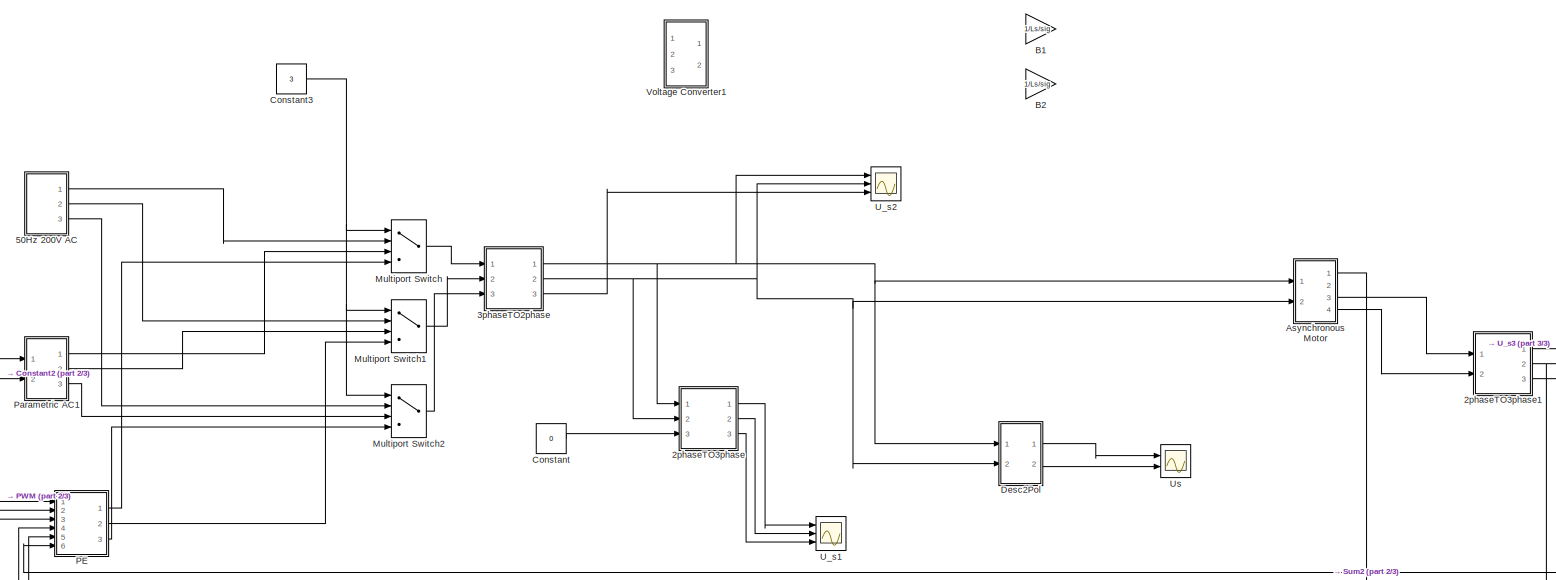
[diagram: root canvas - part 1/3, central region]
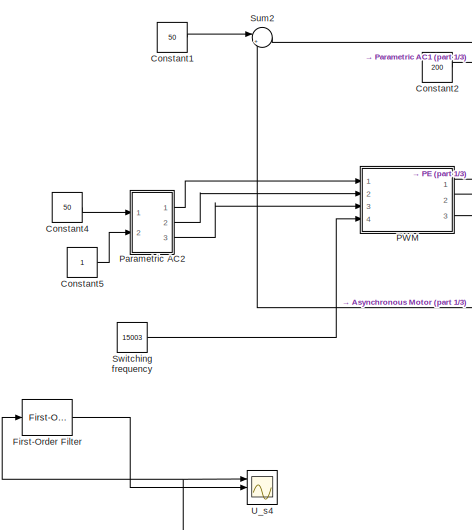
[diagram: root canvas - part 2/3, bottom left region]
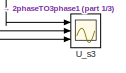
[diagram: root canvas - part 3/3, middle right region]
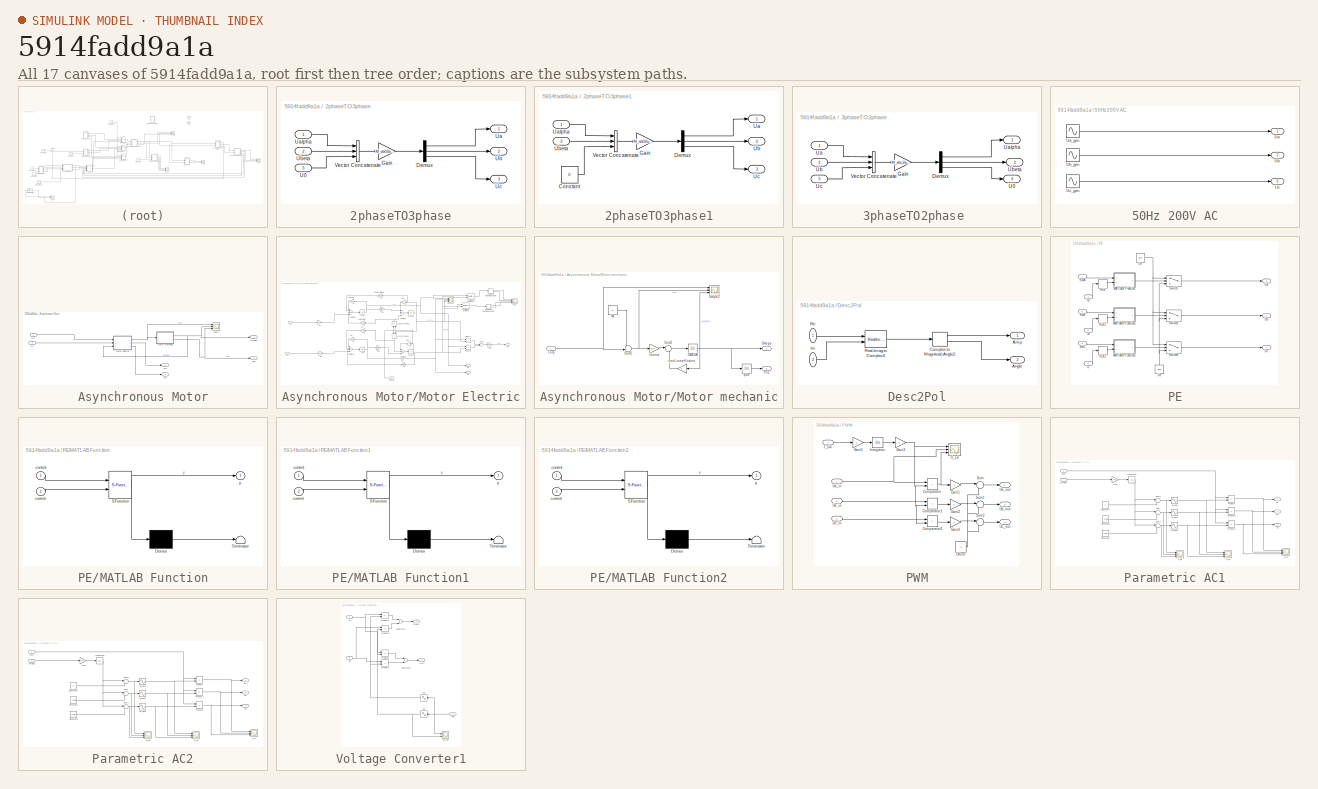
[diagram: thumbnail index - all 17 canvases of the model, root first then tree order]
MODEL slx_5914fadd9a1a
KIND model
CONFIG AbsTol = auto
CONFIG FixedStep = 0.00002
CONFIG MaxStep = auto
CONFIG MinStep = auto
CONFIG RelTol = 1e-3
CONFIG SampleTimeConstraint = Unconstrained
CONFIG Solver = FixedStepAuto
CONFIG SolverMode = Auto
CONFIG SolverName = FixedStepAuto
CONFIG StartTime = 0.0
CONFIG StopTime = 3
BLOCK [SubSystem] 2phaseTO3phase
  Ports = [3, 3]
  RequestExecContextInheritance = off
  Variant = off
BLOCK [Demux] 2phaseTO3phase/Demux
  DisplayOption = bar
  Outputs = 3
  Ports = [1, 3]
BLOCK [Gain] 2phaseTO3phase/Gain
  Gain = M_ab02abc
  Multiplication = Matrix(K*u)
  OutDataTypeStr = Inherit: Inherit via internal rule
  ParamDataTypeStr = Inherit: Inherit via internal rule
  SaturateOnIntegerOverflow = off
BLOCK [Inport] 2phaseTO3phase/U0
  IconDisplay = Port number
  Port = 3
BLOCK [Outport] 2phaseTO3phase/Ua
  IconDisplay = Port number
BLOCK [Inport] 2phaseTO3phase/Ualpha
  IconDisplay = Port number
BLOCK [Outport] 2phaseTO3phase/Ub
  IconDisplay = Port number
  Port = 2
BLOCK [Inport] 2phaseTO3phase/Ubeta
  IconDisplay = Port number
  Port = 2
BLOCK [Outport] 2phaseTO3phase/Uc
  IconDisplay = Port number
  Port = 3
BLOCK [Concatenate] 2phaseTO3phase/Vector Concatenate
  NumInputs = 3
  Ports = [3, 1]
BLOCK [SubSystem] 2phaseTO3phase1
  Ports = [2, 3]
  RequestExecContextInheritance = off
  Variant = off
BLOCK [Constant] 2phaseTO3phase1/Constant
  Value = 0
BLOCK [Demux] 2phaseTO3phase1/Demux
  DisplayOption = bar
  Outputs = 3
  Ports = [1, 3]
BLOCK [Gain] 2phaseTO3phase1/Gain
  Gain = M_ab02abc
  Multiplication = Matrix(K*u)
  OutDataTypeStr = Inherit: Inherit via internal rule
  ParamDataTypeStr = Inherit: Inherit via internal rule
  SaturateOnIntegerOverflow = off
BLOCK [Outport] 2phaseTO3phase1/Ua
  IconDisplay = Port number
BLOCK [Inport] 2phaseTO3phase1/Ualpha
  IconDisplay = Port number
BLOCK [Outport] 2phaseTO3phase1/Ub
  IconDisplay = Port number
  Port = 2
BLOCK [Inport] 2phaseTO3phase1/Ubeta
  IconDisplay = Port number
  Port = 2
BLOCK [Outport] 2phaseTO3phase1/Uc
  IconDisplay = Port number
  Port = 3
BLOCK [Concatenate] 2phaseTO3phase1/Vector Concatenate
  NumInputs = 3
  Ports = [3, 1]
BLOCK [SubSystem] 3phaseTO2phase 
  Ports = [3, 3]
  RequestExecContextInheritance = off
  Variant = off
BLOCK [Demux] 3phaseTO2phase /Demux
  DisplayOption = bar
  Outputs = 3
  Ports = [1, 3]
BLOCK [Gain] 3phaseTO2phase /Gain
  Gain = M_abc2ab0
  Multiplication = Matrix(K*u)
  OutDataTypeStr = Inherit: Inherit via internal rule
  ParamDataTypeStr = Inherit: Inherit via internal rule
  SaturateOnIntegerOverflow = off
BLOCK [Outport] 3phaseTO2phase /U0
  IconDisplay = Port number
  Port = 3
BLOCK [Inport] 3phaseTO2phase /Ua
  IconDisplay = Port number
BLOCK [Outport] 3phaseTO2phase /Ualpha
  IconDisplay = Port number
BLOCK [Inport] 3phaseTO2phase /Ub
  IconDisplay = Port number
  Port = 2
BLOCK [Outport] 3phaseTO2phase /Ubeta
  IconDisplay = Port number
  Port = 2
BLOCK [Inport] 3phaseTO2phase /Uc
  IconDisplay = Port number
  Port = 3
BLOCK [Concatenate] 3phaseTO2phase /Vector Concatenate
  NumInputs = 3
  Ports = [3, 1]
BLOCK [SubSystem] 50Hz 200V AC
  Ports = [0, 3]
  RequestExecContextInheritance = off
  Variant = off
BLOCK [Outport] 50Hz 200V AC/Ua
  IconDisplay = Port number
BLOCK [Sin] 50Hz 200V AC/Ua_gen
  Amplitude = 200
  Frequency = 314
  Ports = [0, 1]
  SampleTime = 0
BLOCK [Outport] 50Hz 200V AC/Ub
  IconDisplay = Port number
  Port = 2
BLOCK [Sin] 50Hz 200V AC/Ub_gen
  Amplitude = 200
  Frequency = 314
  Phase = -2*pi/3
  Ports = [0, 1]
  SampleTime = 0
BLOCK [Outport] 50Hz 200V AC/Uc
  IconDisplay = Port number
  Port = 3
BLOCK [Sin] 50Hz 200V AC/Uc_gen
  Amplitude = 200
  Frequency = 314
  Phase = 2*pi/3
  Ports = [0, 1]
  SampleTime = 0
BLOCK [SubSystem] Asynchronous Motor
  Ports = [2, 4]
  RequestExecContextInheritance = off
  Variant = off
BLOCK [Outport] Asynchronous Motor/Isd
  IconDisplay = Port number
  Port = 3
BLOCK [Outport] Asynchronous Motor/Isq
  IconDisplay = Port number
  Port = 4
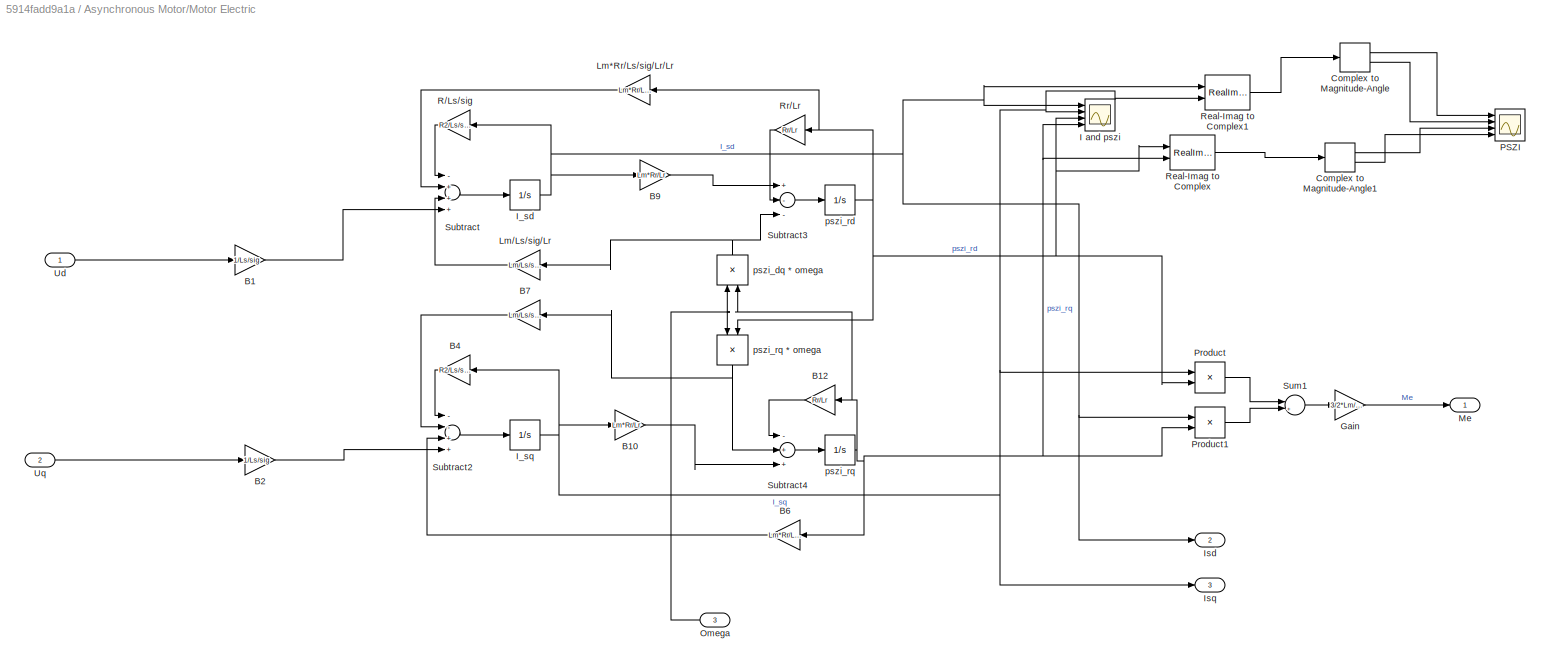
BLOCK [SubSystem] Asynchronous Motor/Motor Electric
  Ports = [3, 3]
  RequestExecContextInheritance = off
  Variant = off
BLOCK [Gain] Asynchronous Motor/Motor Electric/B1
  Gain = 1/Ls/sig
  Multiplication = Matrix(K*u)
  OutDataTypeStr = Inherit: Inherit via internal rule
  ParamDataTypeStr = Inherit: Inherit via internal rule
  SaturateOnIntegerOverflow = off
BLOCK [Gain] Asynchronous Motor/Motor Electric/B10
  Gain = Lm*Rr/Lr
  Multiplication = Matrix(K*u)
  OutDataTypeStr = Inherit: Inherit via internal rule
  ParamDataTypeStr = Inherit: Inherit via internal rule
  SaturateOnIntegerOverflow = off
BLOCK [Gain] Asynchronous Motor/Motor Electric/B12
  Gain = Rr/Lr
  Multiplication = Matrix(K*u)
  OutDataTypeStr = Inherit: Inherit via internal rule
  ParamDataTypeStr = Inherit: Inherit via internal rule
  SaturateOnIntegerOverflow = off
BLOCK [Gain] Asynchronous Motor/Motor Electric/B2
  Gain = 1/Ls/sig
  Multiplication = Matrix(K*u)
  OutDataTypeStr = Inherit: Inherit via internal rule
  ParamDataTypeStr = Inherit: Inherit via internal rule
  SaturateOnIntegerOverflow = off
BLOCK [Gain] Asynchronous Motor/Motor Electric/B4
  Gain = R2/Ls/sig
  Multiplication = Matrix(K*u)
  OutDataTypeStr = Inherit: Inherit via internal rule
  ParamDataTypeStr = Inherit: Inherit via internal rule
  SaturateOnIntegerOverflow = off
BLOCK [Gain] Asynchronous Motor/Motor Electric/B6
  Gain = Lm*Rr/Ls/sig/Lr/Lr
  Multiplication = Matrix(K*u)
  OutDataTypeStr = Inherit: Inherit via internal rule
  ParamDataTypeStr = Inherit: Inherit via internal rule
  SaturateOnIntegerOverflow = off
BLOCK [Gain] Asynchronous Motor/Motor Electric/B7
  Gain = Lm/Ls/sig/Lr
  Multiplication = Matrix(K*u)
  OutDataTypeStr = Inherit: Inherit via internal rule
  ParamDataTypeStr = Inherit: Inherit via internal rule
  SaturateOnIntegerOverflow = off
BLOCK [Gain] Asynchronous Motor/Motor Electric/B9
  Gain = Lm*Rr/Lr
  Multiplication = Matrix(K*u)
  OutDataTypeStr = Inherit: Inherit via internal rule
  ParamDataTypeStr = Inherit: Inherit via internal rule
  SaturateOnIntegerOverflow = off
BLOCK [ComplexToMagnitudeAngle] Asynchronous Motor/Motor Electric/Complex to Magnitude-Angle
  Ports = [1, 2]
BLOCK [ComplexToMagnitudeAngle] Asynchronous Motor/Motor Electric/Complex to Magnitude-Angle1
  Ports = [1, 2]
BLOCK [Gain] Asynchronous Motor/Motor Electric/Gain
  Gain = 3/2*Lm/Lr
  OutDataTypeStr = Inherit: Inherit via internal rule
  ParamDataTypeStr = Inherit: Inherit via internal rule
  SaturateOnIntegerOverflow = off
BLOCK [Scope] Asynchronous Motor/Motor Electric/I and pszi
  NumInputPorts = 4
  Ports = [4]
  ScopeSpecificationString = Simulink.scopes.TimeScopeBlockCfg('CurrentConfiguration', extmgr.ConfigurationSet(extmgr.Configuration('Core','General UI',true),extmgr.Configuration('Core','Source UI',true),extmgr.Configuration('Sources','WiredSimulink',true),extmgr.Configuration('Visuals','Time Domain',true,'SerializedDisplays',{struct('MinYLimReal','-0.35721','MaxYLimReal','0.2837','YLabelReal','','MinYLimMag','0.00000','MaxYL...<+1422ch>
BLOCK [Integrator] Asynchronous Motor/Motor Electric/I_sd
  Ports = [1, 1]
BLOCK [Integrator] Asynchronous Motor/Motor Electric/I_sq
  Ports = [1, 1]
BLOCK [Outport] Asynchronous Motor/Motor Electric/Isd
  IconDisplay = Port number
  Port = 2
BLOCK [Outport] Asynchronous Motor/Motor Electric/Isq
  IconDisplay = Port number
  Port = 3
BLOCK [Gain] Asynchronous Motor/Motor Electric/Lm*Rr//Ls//sig//Lr//Lr
  Gain = Lm*Rr/Ls/sig/Lr/Lr
  Multiplication = Matrix(K*u)
  OutDataTypeStr = Inherit: Inherit via internal rule
  ParamDataTypeStr = Inherit: Inherit via internal rule
  SaturateOnIntegerOverflow = off
BLOCK [Gain] Asynchronous Motor/Motor Electric/Lm//Ls//sig//Lr
  Gain = Lm/Ls/sig/Lr
  Multiplication = Matrix(K*u)
  OutDataTypeStr = Inherit: Inherit via internal rule
  ParamDataTypeStr = Inherit: Inherit via internal rule
  SaturateOnIntegerOverflow = off
BLOCK [Outport] Asynchronous Motor/Motor Electric/Me
  IconDisplay = Port number
BLOCK [Inport] Asynchronous Motor/Motor Electric/Omega
  IconDisplay = Port number
  Port = 3
BLOCK [Scope] Asynchronous Motor/Motor Electric/PSZI
  NumInputPorts = 4
  Ports = [4]
  ScopeSpecificationString = Simulink.scopes.TimeScopeBlockCfg('CurrentConfiguration', extmgr.ConfigurationSet(extmgr.Configuration('Core','General UI',true),extmgr.Configuration('Core','Source UI',true),extmgr.Configuration('Sources','WiredSimulink',true,'DataLoggingVariableName','ScopeData2'),extmgr.Configuration('Visuals','Time Domain',true,'SerializedDisplays',{struct('MinYLimReal','-15.09969','MaxYLimReal','104.48314','Y...<+1472ch>
BLOCK [Product] Asynchronous Motor/Motor Electric/Product
  InputSameDT = off
  OutDataTypeStr = Inherit: Inherit via internal rule
  Ports = [2, 1]
  RndMeth = Floor
  SaturateOnIntegerOverflow = off
BLOCK [Product] Asynchronous Motor/Motor Electric/Product1
  InputSameDT = off
  OutDataTypeStr = Inherit: Inherit via internal rule
  Ports = [2, 1]
  RndMeth = Floor
  SaturateOnIntegerOverflow = off
BLOCK [Gain] Asynchronous Motor/Motor Electric/R//Ls//sig
  Gain = R2/Ls/sig
  Multiplication = Matrix(K*u)
  OutDataTypeStr = Inherit: Inherit via internal rule
  ParamDataTypeStr = Inherit: Inherit via internal rule
  SaturateOnIntegerOverflow = off
BLOCK [RealImagToComplex] Asynchronous Motor/Motor Electric/Real-Imag to Complex
  Ports = [2, 1]
BLOCK [RealImagToComplex] Asynchronous Motor/Motor Electric/Real-Imag to Complex1
  Ports = [2, 1]
BLOCK [Gain] Asynchronous Motor/Motor Electric/Rr//Lr
  Gain = Rr/Lr
  Multiplication = Matrix(K*u)
  OutDataTypeStr = Inherit: Inherit via internal rule
  ParamDataTypeStr = Inherit: Inherit via internal rule
  SaturateOnIntegerOverflow = off
BLOCK [Sum] Asynchronous Motor/Motor Electric/Subtract
  InputSameDT = off
  Inputs = -+++
  OutDataTypeStr = Inherit: Inherit via internal rule
  Ports = [4, 1]
  SaturateOnIntegerOverflow = off
BLOCK [Sum] Asynchronous Motor/Motor Electric/Subtract2
  InputSameDT = off
  Inputs = --++
  OutDataTypeStr = Inherit: Inherit via internal rule
  Ports = [4, 1]
  SaturateOnIntegerOverflow = off
BLOCK [Sum] Asynchronous Motor/Motor Electric/Subtract3
  InputSameDT = off
  Inputs = +--
  OutDataTypeStr = Inherit: Inherit via internal rule
  Ports = [3, 1]
  SaturateOnIntegerOverflow = off
BLOCK [Sum] Asynchronous Motor/Motor Electric/Subtract4
  InputSameDT = off
  Inputs = -++
  OutDataTypeStr = Inherit: Inherit via internal rule
  Ports = [3, 1]
  SaturateOnIntegerOverflow = off
BLOCK [Sum] Asynchronous Motor/Motor Electric/Sum1
  IconShape = round
  InputSameDT = off
  Inputs = |+-|
  OutDataTypeStr = Inherit: Inherit via internal rule
  Ports = [2, 1]
  SaturateOnIntegerOverflow = off
BLOCK [Inport] Asynchronous Motor/Motor Electric/Ud
  IconDisplay = Port number
BLOCK [Inport] Asynchronous Motor/Motor Electric/Uq
  IconDisplay = Port number
  Port = 2
BLOCK [Product] Asynchronous Motor/Motor Electric/pszi_dq * omega
  InputSameDT = off
  OutDataTypeStr = Inherit: Inherit via internal rule
  Ports = [2, 1]
  RndMeth = Floor
  SaturateOnIntegerOverflow = off
BLOCK [Integrator] Asynchronous Motor/Motor Electric/pszi_rd
  Ports = [1, 1]
BLOCK [Integrator] Asynchronous Motor/Motor Electric/pszi_rq 
  Ports = [1, 1]
BLOCK [Product] Asynchronous Motor/Motor Electric/pszi_rq * omega
  InputSameDT = off
  OutDataTypeStr = Inherit: Inherit via internal rule
  Ports = [2, 1]
  RndMeth = Floor
  SaturateOnIntegerOverflow = off
BLOCK [SubSystem] Asynchronous Motor/Motor mechanic
  Ports = [1, 2]
  RequestExecContextInheritance = off
  Variant = off
BLOCK [Gain] Asynchronous Motor/Motor mechanic/Inertia
  Gain = 1/0.1
  OutDataTypeStr = Inherit: Inherit via internal rule
  ParamDataTypeStr = Inherit: Inherit via internal rule
  SaturateOnIntegerOverflow = off
BLOCK [Constant] Asynchronous Motor/Motor mechanic/Mt
  Value = 0
BLOCK [Integrator] Asynchronous Motor/Motor mechanic/OMEGA
  Ports = [1, 1]
BLOCK [Outport] Asynchronous Motor/Motor mechanic/Omega
  IconDisplay = Port number
BLOCK [Outport] Asynchronous Motor/Motor mechanic/Pos
  IconDisplay = Port number
  Port = 2
BLOCK [Scope] Asynchronous Motor/Motor mechanic/Scope2
  NumInputPorts = 3
  Ports = [3]
  ScopeSpecificationString = Simulink.scopes.TimeScopeBlockCfg('CurrentConfiguration', extmgr.ConfigurationSet(extmgr.Configuration('Core','General UI',true),extmgr.Configuration('Core','Source UI',true),extmgr.Configuration('Sources','WiredSimulink',true,'DataLoggingVariableName','ScopeData2'),extmgr.Configuration('Visuals','Time Domain',true,'SerializedDisplays',{struct('MinYLimReal','90.00000','MaxYLimReal','110.00000','YL...<+2799ch>
BLOCK [Sum] Asynchronous Motor/Motor mechanic/Sum2
  IconShape = round
  InputSameDT = off
  Inputs = -+|
  OutDataTypeStr = Inherit: Inherit via internal rule
  Ports = [2, 1]
  SaturateOnIntegerOverflow = off
BLOCK [Sum] Asynchronous Motor/Motor mechanic/Sum3
  IconShape = round
  InputSameDT = off
  Inputs = |+-
  OutDataTypeStr = Inherit: Inherit via internal rule
  Ports = [2, 1]
  SaturateOnIntegerOverflow = off
BLOCK [Inport] Asynchronous Motor/Motor mechanic/Torq 
  IconDisplay = Port number
BLOCK [Gain] Asynchronous Motor/Motor mechanic/nonLinearFriction
  OutDataTypeStr = Inherit: Inherit via internal rule
  ParamDataTypeStr = Inherit: Inherit via internal rule
  SaturateOnIntegerOverflow = off
BLOCK [Integrator] Asynchronous Motor/Motor mechanic/pos
  Ports = [1, 1]
  WrapState = on
BLOCK [Outport] Asynchronous Motor/Omega
  IconDisplay = Port number
BLOCK [Outport] Asynchronous Motor/Pos
  IconDisplay = Port number
  Port = 2
BLOCK [Inport] Asynchronous Motor/Ud
  IconDisplay = Port number
BLOCK [Inport] Asynchronous Motor/Us
  IconDisplay = Port number
  Port = 2
BLOCK [Scope] Asynchronous Motor/test1
  NumInputPorts = 3
  Ports = [3]
  ScopeSpecificationString = Simulink.scopes.TimeScopeBlockCfg('CurrentConfiguration', extmgr.ConfigurationSet(extmgr.Configuration('Core','General UI',true),extmgr.Configuration('Core','Source UI',true),extmgr.Configuration('Sources','WiredSimulink',true,'DataLoggingVariableName','ScopeData3'),extmgr.Configuration('Visuals','Time Domain',true,'SerializedDisplays',{struct('MinYLimReal','-12.36256','MaxYLimReal','79.84713','YL...<+1441ch>
BLOCK [Gain] B1
  Gain = 1/Ls/sig
  Multiplication = Matrix(K*u)
  OutDataTypeStr = Inherit: Inherit via internal rule
  ParamDataTypeStr = Inherit: Inherit via internal rule
  SaturateOnIntegerOverflow = off
BLOCK [Gain] B2
  Gain = 1/Ls/sig
  Multiplication = Matrix(K*u)
  OutDataTypeStr = Inherit: Inherit via internal rule
  ParamDataTypeStr = Inherit: Inherit via internal rule
  SaturateOnIntegerOverflow = off
BLOCK [Constant] Constant
  Value = 0
BLOCK [Constant] Constant1
  Value = 50
BLOCK [Constant] Constant2
  Value = 200
BLOCK [Constant] Constant3
  Value = 3
BLOCK [Constant] Constant4
  Value = 50
BLOCK [Constant] Constant5
BLOCK [SubSystem] Desc2Pol
  Ports = [2, 2]
  RequestExecContextInheritance = off
  Variant = off
BLOCK [Outport] Desc2Pol/Amp
  IconDisplay = Port number
BLOCK [Outport] Desc2Pol/Angle
  IconDisplay = Port number
  Port = 2
BLOCK [ComplexToMagnitudeAngle] Desc2Pol/Complex to Magnitude-Angle2
  Ports = [1, 2]
BLOCK [Inport] Desc2Pol/Im
  IconDisplay = Port number
  Port = 2
BLOCK [Inport] Desc2Pol/Re
  IconDisplay = Port number
BLOCK [RealImagToComplex] Desc2Pol/Real-Imag to Complex3
  Ports = [2, 1]
BLOCK [Reference] First-Order Filter  REF=powerlib_meascontrol/Filters/First-Order
Filter
  Ports = [1, 1]
  SourceBlock = powerlib_meascontrol/Filters/First-Order\nFilter
  SourceType = First-Order Filter
BLOCK [MultiPortSwitch] Multiport Switch
  InputSameDT = off
  Ports = [4, 1]
  SaturateOnIntegerOverflow = off
BLOCK [MultiPortSwitch] Multiport Switch1
  InputSameDT = off
  Ports = [4, 1]
  SaturateOnIntegerOverflow = off
BLOCK [MultiPortSwitch] Multiport Switch2
  InputSameDT = off
  Ports = [4, 1]
  SaturateOnIntegerOverflow = off
BLOCK [SubSystem] PE
  Ports = [6, 3]
  RequestExecContextInheritance = off
  Variant = off
BLOCK [Constant] PE/-Ue
  Value = -200
BLOCK [Relay] PE/Hist
  InputProcessing = Elements as channels (sample based)
  OffOutputValue = -1
  OffSwitchValue = -0.5
  OnSwitchValue = 0.1
BLOCK [Relay] PE/Hist1
  InputProcessing = Elements as channels (sample based)
  OffOutputValue = -1
  OffSwitchValue = -0.5
  OnSwitchValue = 0.1
BLOCK [Relay] PE/Hist2
  InputProcessing = Elements as channels (sample based)
  OffOutputValue = -1
  OffSwitchValue = -0.5
  OnSwitchValue = 0.1
BLOCK [Inport] PE/Ia
  IconDisplay = Port number
  Port = 4
BLOCK [Inport] PE/Ib
  IconDisplay = Port number
  Port = 5
BLOCK [Inport] PE/Ic
  IconDisplay = Port number
  Port = 6
BLOCK [SubSystem] PE/MATLAB Function
  ErrorFcn = Stateflow.Translate.translate
  PermitHierarchicalResolution = ExplicitOnly
  Ports = [2, 1]
  RequestExecContextInheritance = off
  SFBlockType = MATLAB Function
  TreatAsAtomicUnit = on
  Variant = off
BLOCK [Demux] PE/MATLAB Function/ Demux 
  Outputs = 1
  Ports = [1, 1]
BLOCK [S-Function] PE/MATLAB Function/ SFunction 
  EnableBusSupport = on
  FunctionName = sf_sfun
  PortCounts = [2 2]
  Ports = [2, 2]
  SFunctionDeploymentMode = off
  Tag = Stateflow S-Function SCIM11 2
BLOCK [Terminator] PE/MATLAB Function/ Terminator 
BLOCK [Inport] PE/MATLAB Function/control
  IconDisplay = Port number
BLOCK [Inport] PE/MATLAB Function/current
  IconDisplay = Port number
  Port = 2
BLOCK [Outport] PE/MATLAB Function/y
  IconDisplay = Port number
BLOCK [SubSystem] PE/MATLAB Function1
  ErrorFcn = Stateflow.Translate.translate
  PermitHierarchicalResolution = ExplicitOnly
  Ports = [2, 1]
  RequestExecContextInheritance = off
  SFBlockType = MATLAB Function
  TreatAsAtomicUnit = on
  Variant = off
BLOCK [Demux] PE/MATLAB Function1/ Demux 
  Outputs = 1
  Ports = [1, 1]
BLOCK [S-Function] PE/MATLAB Function1/ SFunction 
  EnableBusSupport = on
  FunctionName = sf_sfun
  PortCounts = [2 2]
  Ports = [2, 2]
  SFunctionDeploymentMode = off
  Tag = Stateflow S-Function SCIM11 1
BLOCK [Terminator] PE/MATLAB Function1/ Terminator 
BLOCK [Inport] PE/MATLAB Function1/control
  IconDisplay = Port number
BLOCK [Inport] PE/MATLAB Function1/current
  IconDisplay = Port number
  Port = 2
BLOCK [Outport] PE/MATLAB Function1/y
  IconDisplay = Port number
BLOCK [SubSystem] PE/MATLAB Function2
  ErrorFcn = Stateflow.Translate.translate
  PermitHierarchicalResolution = ExplicitOnly
  Ports = [2, 1]
  RequestExecContextInheritance = off
  SFBlockType = MATLAB Function
  TreatAsAtomicUnit = on
  Variant = off
BLOCK [Demux] PE/MATLAB Function2/ Demux 
  Outputs = 1
  Ports = [1, 1]
BLOCK [S-Function] PE/MATLAB Function2/ SFunction 
  EnableBusSupport = on
  FunctionName = sf_sfun
  PortCounts = [2 2]
  Ports = [2, 2]
  SFunctionDeploymentMode = off
  Tag = Stateflow S-Function SCIM11 3
BLOCK [Terminator] PE/MATLAB Function2/ Terminator 
BLOCK [Inport] PE/MATLAB Function2/control
  IconDisplay = Port number
BLOCK [Inport] PE/MATLAB Function2/current
  IconDisplay = Port number
  Port = 2
BLOCK [Outport] PE/MATLAB Function2/y
  IconDisplay = Port number
BLOCK [Inport] PE/SwA
  IconDisplay = Port number
BLOCK [Inport] PE/SwB
  IconDisplay = Port number
  Port = 2
BLOCK [Inport] PE/SwC
  IconDisplay = Port number
  Port = 3
BLOCK [Switch] PE/Switch
  Criteria = u2 > Threshold
  InputSameDT = off
  SaturateOnIntegerOverflow = off
  Threshold = 0.5
BLOCK [Switch] PE/Switch1
  Criteria = u2 > Threshold
  InputSameDT = off
  SaturateOnIntegerOverflow = off
  Threshold = 0.5
BLOCK [Switch] PE/Switch2
  Criteria = u2 > Threshold
  InputSameDT = off
  SaturateOnIntegerOverflow = off
  Threshold = 0.5
BLOCK [Outport] PE/Ua
  IconDisplay = Port number
BLOCK [Outport] PE/Ub
  IconDisplay = Port number
  Port = 2
BLOCK [Outport] PE/Uc
  IconDisplay = Port number
  Port = 3
BLOCK [Constant] PE/Ue
  Value = 200
BLOCK [SubSystem] PWM
  Ports = [4, 3]
  RequestExecContextInheritance = off
  Variant = off
BLOCK [RelationalOperator] PWM/Comparator
  InputSameDT = off
  Operator = >
  OutDataTypeStr = boolean
  Ports = [2, 1]
BLOCK [RelationalOperator] PWM/Comparator1
  InputSameDT = off
  Operator = >
  OutDataTypeStr = boolean
  Ports = [2, 1]
BLOCK [RelationalOperator] PWM/Comparator2
  InputSameDT = off
  Operator = >
  OutDataTypeStr = boolean
  Ports = [2, 1]
BLOCK [Gain] PWM/Gain1
  Gain = 2
  OutDataTypeStr = Inherit: Inherit via internal rule
  ParamDataTypeStr = Inherit: Inherit via internal rule
  SaturateOnIntegerOverflow = off
BLOCK [Gain] PWM/Gain2
  Gain = 2
  OutDataTypeStr = Inherit: Inherit via internal rule
  ParamDataTypeStr = Inherit: Inherit via internal rule
  SaturateOnIntegerOverflow = off
BLOCK [Gain] PWM/Gain3
  OutDataTypeStr = Inherit: Inherit via internal rule
  ParamDataTypeStr = Inherit: Inherit via internal rule
  SaturateOnIntegerOverflow = off
BLOCK [Gain] PWM/Gain4
  Gain = 2
  OutDataTypeStr = Inherit: Inherit via internal rule
  ParamDataTypeStr = Inherit: Inherit via internal rule
  SaturateOnIntegerOverflow = off
BLOCK [Gain] PWM/Gain5
  Gain = 2
  OutDataTypeStr = Inherit: Inherit via internal rule
  ParamDataTypeStr = Inherit: Inherit via internal rule
  SaturateOnIntegerOverflow = off
BLOCK [Integrator] PWM/Integrator
  Ports = [1, 1]
  WrapState = on
  WrappedStateLowerValue = -1.01
  WrappedStateUpperValue = 1.01
BLOCK [Constant] PWM/Offset
  Value = -1
BLOCK [Sum] PWM/Sum
  IconShape = round
  InputSameDT = off
  Inputs = |++
  OutDataTypeStr = Inherit: Inherit via internal rule
  Ports = [2, 1]
  SaturateOnIntegerOverflow = off
BLOCK [Sum] PWM/Sum1
  IconShape = round
  InputSameDT = off
  Inputs = |++
  OutDataTypeStr = Inherit: Inherit via internal rule
  Ports = [2, 1]
  SaturateOnIntegerOverflow = off
BLOCK [Sum] PWM/Sum2
  IconShape = round
  InputSameDT = off
  Inputs = |++
  OutDataTypeStr = Inherit: Inherit via internal rule
  Ports = [2, 1]
  SaturateOnIntegerOverflow = off
BLOCK [Scope] PWM/U_s4
  NumInputPorts = 3
  Ports = [3]
  ScopeSpecificationString = Simulink.scopes.TimeScopeBlockCfg('CurrentConfiguration', extmgr.ConfigurationSet(extmgr.Configuration('Core','General UI',true),extmgr.Configuration('Core','Source UI',true),extmgr.Configuration('Sources','WiredSimulink',true,'DataLoggingVariableName','ScopeData11'),extmgr.Configuration('Visuals','Time Domain',true,'SerializedDisplays',{struct('MinYLimReal','-1.26244','MaxYLimReal','1.26236','YLa...<+3043ch>
BLOCK [Inport] PWM/Ua_in
  IconDisplay = Port number
BLOCK [Outport] PWM/Ua_out
  IconDisplay = Port number
BLOCK [Inport] PWM/Ub_in
  IconDisplay = Port number
  Port = 2
BLOCK [Outport] PWM/Ub_out
  IconDisplay = Port number
  Port = 2
BLOCK [Inport] PWM/Uc_in
  IconDisplay = Port number
  Port = 3
BLOCK [Outport] PWM/Uc_out
  IconDisplay = Port number
  Port = 3
BLOCK [Inport] PWM/f_sw
  IconDisplay = Port number
  Port = 4
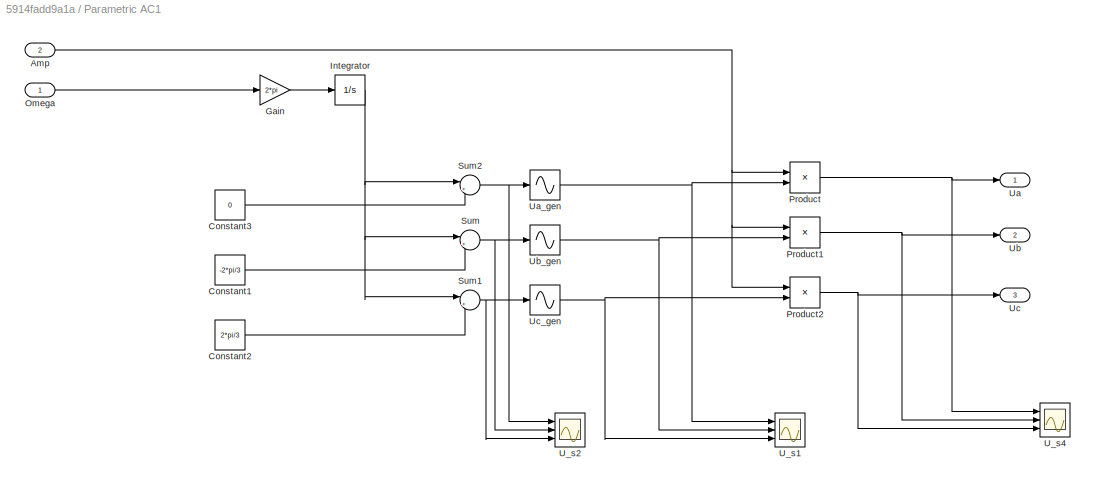
BLOCK [SubSystem] Parametric AC1
  Ports = [2, 3]
  RequestExecContextInheritance = off
  Variant = off
BLOCK [Inport] Parametric AC1/Amp
  IconDisplay = Port number
  Port = 2
BLOCK [Constant] Parametric AC1/Constant1
  Value = -2*pi/3
BLOCK [Constant] Parametric AC1/Constant2
  Value = 2*pi/3
BLOCK [Constant] Parametric AC1/Constant3
  Value = 0
BLOCK [Gain] Parametric AC1/Gain
  Gain = 2*pi
  OutDataTypeStr = Inherit: Inherit via internal rule
  ParamDataTypeStr = Inherit: Inherit via internal rule
  SaturateOnIntegerOverflow = off
BLOCK [Integrator] Parametric AC1/Integrator
  Ports = [1, 1]
  WrapState = on
BLOCK [Inport] Parametric AC1/Omega
  IconDisplay = Port number
BLOCK [Product] Parametric AC1/Product
  InputSameDT = off
  OutDataTypeStr = Inherit: Inherit via internal rule
  Ports = [2, 1]
  RndMeth = Floor
  SaturateOnIntegerOverflow = off
BLOCK [Product] Parametric AC1/Product1
  InputSameDT = off
  OutDataTypeStr = Inherit: Inherit via internal rule
  Ports = [2, 1]
  RndMeth = Floor
  SaturateOnIntegerOverflow = off
BLOCK [Product] Parametric AC1/Product2
  InputSameDT = off
  OutDataTypeStr = Inherit: Inherit via internal rule
  Ports = [2, 1]
  RndMeth = Floor
  SaturateOnIntegerOverflow = off
BLOCK [Sum] Parametric AC1/Sum
  IconShape = round
  InputSameDT = off
  Inputs = |++
  OutDataTypeStr = Inherit: Inherit via internal rule
  Ports = [2, 1]
  SaturateOnIntegerOverflow = off
BLOCK [Sum] Parametric AC1/Sum1
  IconShape = round
  InputSameDT = off
  Inputs = |++
  OutDataTypeStr = Inherit: Inherit via internal rule
  Ports = [2, 1]
  SaturateOnIntegerOverflow = off
BLOCK [Sum] Parametric AC1/Sum2
  IconShape = round
  InputSameDT = off
  Inputs = |++
  OutDataTypeStr = Inherit: Inherit via internal rule
  Ports = [2, 1]
  SaturateOnIntegerOverflow = off
BLOCK [Scope] Parametric AC1/U_s1
  NumInputPorts = 3
  Ports = [3]
  ScopeSpecificationString = Simulink.scopes.TimeScopeBlockCfg('CurrentConfiguration', extmgr.ConfigurationSet(extmgr.Configuration('Core','General UI',true),extmgr.Configuration('Core','Source UI',true),extmgr.Configuration('Sources','WiredSimulink',true,'DataLoggingVariableName','ScopeData9'),extmgr.Configuration('Visuals','Time Domain',true,'SerializedDisplays',{struct('MinYLimReal','-1.25','MaxYLimReal','1.25','YLabelReal...<+1391ch>
BLOCK [Scope] Parametric AC1/U_s2
  NumInputPorts = 3
  Ports = [3]
  ScopeSpecificationString = Simulink.scopes.TimeScopeBlockCfg('CurrentConfiguration', extmgr.ConfigurationSet(extmgr.Configuration('Core','General UI',true),extmgr.Configuration('Core','Source UI',true),extmgr.Configuration('Sources','WiredSimulink',true,'DataLoggingVariableName','ScopeData10'),extmgr.Configuration('Visuals','Time Domain',true,'SerializedDisplays',{struct('MinYLimReal','-6.54476','MaxYLimReal','6.54422','YLa...<+1410ch>
BLOCK [Scope] Parametric AC1/U_s4
  NumInputPorts = 3
  Ports = [3]
  ScopeSpecificationString = Simulink.scopes.TimeScopeBlockCfg('CurrentConfiguration', extmgr.ConfigurationSet(extmgr.Configuration('Core','General UI',true),extmgr.Configuration('Core','Source UI',true),extmgr.Configuration('Sources','WiredSimulink',true,'DataLoggingVariableName','ScopeData8'),extmgr.Configuration('Visuals','Time Domain',true,'SerializedDisplays',{struct('MinYLimReal','-49999.99999','MaxYLimReal','49999.9999...<+1464ch>
BLOCK [Outport] Parametric AC1/Ua
  IconDisplay = Port number
BLOCK [Sin] Parametric AC1/Ua_gen
  Ports = [1, 1]
  SampleTime = 0
  TimeSource = Use external signal
BLOCK [Outport] Parametric AC1/Ub
  IconDisplay = Port number
  Port = 2
BLOCK [Sin] Parametric AC1/Ub_gen
  Ports = [1, 1]
  SampleTime = 0
  TimeSource = Use external signal
BLOCK [Outport] Parametric AC1/Uc
  IconDisplay = Port number
  Port = 3
BLOCK [Sin] Parametric AC1/Uc_gen
  Ports = [1, 1]
  SampleTime = 0
  TimeSource = Use external signal
BLOCK [SubSystem] Parametric AC2
  Ports = [2, 3]
  RequestExecContextInheritance = off
  Variant = off
BLOCK [Inport] Parametric AC2/Amp
  IconDisplay = Port number
  Port = 2
BLOCK [Constant] Parametric AC2/Constant1
  Value = -2*pi/3
BLOCK [Constant] Parametric AC2/Constant2
  Value = 2*pi/3
BLOCK [Constant] Parametric AC2/Constant3
  Value = 0
BLOCK [Gain] Parametric AC2/Gain
  Gain = 2*pi
  OutDataTypeStr = Inherit: Inherit via internal rule
  ParamDataTypeStr = Inherit: Inherit via internal rule
  SaturateOnIntegerOverflow = off
BLOCK [Integrator] Parametric AC2/Integrator
  Ports = [1, 1]
  WrapState = on
BLOCK [Inport] Parametric AC2/Omega
  IconDisplay = Port number
BLOCK [Product] Parametric AC2/Product
  InputSameDT = off
  OutDataTypeStr = Inherit: Inherit via internal rule
  Ports = [2, 1]
  RndMeth = Floor
  SaturateOnIntegerOverflow = off
BLOCK [Product] Parametric AC2/Product1
  InputSameDT = off
  OutDataTypeStr = Inherit: Inherit via internal rule
  Ports = [2, 1]
  RndMeth = Floor
  SaturateOnIntegerOverflow = off
BLOCK [Product] Parametric AC2/Product2
  InputSameDT = off
  OutDataTypeStr = Inherit: Inherit via internal rule
  Ports = [2, 1]
  RndMeth = Floor
  SaturateOnIntegerOverflow = off
BLOCK [Sum] Parametric AC2/Sum
  IconShape = round
  InputSameDT = off
  Inputs = |++
  OutDataTypeStr = Inherit: Inherit via internal rule
  Ports = [2, 1]
  SaturateOnIntegerOverflow = off
BLOCK [Sum] Parametric AC2/Sum1
  IconShape = round
  InputSameDT = off
  Inputs = |++
  OutDataTypeStr = Inherit: Inherit via internal rule
  Ports = [2, 1]
  SaturateOnIntegerOverflow = off
BLOCK [Sum] Parametric AC2/Sum2
  IconShape = round
  InputSameDT = off
  Inputs = |++
  OutDataTypeStr = Inherit: Inherit via internal rule
  Ports = [2, 1]
  SaturateOnIntegerOverflow = off
BLOCK [Scope] Parametric AC2/U_s1
  NumInputPorts = 3
  Ports = [3]
  ScopeSpecificationString = Simulink.scopes.TimeScopeBlockCfg('CurrentConfiguration', extmgr.ConfigurationSet(extmgr.Configuration('Core','General UI',true),extmgr.Configuration('Core','Source UI',true),extmgr.Configuration('Sources','WiredSimulink',true,'DataLoggingVariableName','ScopeData9'),extmgr.Configuration('Visuals','Time Domain',true,'SerializedDisplays',{struct('MinYLimReal','-1.25','MaxYLimReal','1.25','YLabelReal...<+1391ch>
BLOCK [Scope] Parametric AC2/U_s2
  NumInputPorts = 3
  Ports = [3]
  ScopeSpecificationString = Simulink.scopes.TimeScopeBlockCfg('CurrentConfiguration', extmgr.ConfigurationSet(extmgr.Configuration('Core','General UI',true),extmgr.Configuration('Core','Source UI',true),extmgr.Configuration('Sources','WiredSimulink',true,'DataLoggingVariableName','ScopeData10'),extmgr.Configuration('Visuals','Time Domain',true,'SerializedDisplays',{struct('MinYLimReal','-6.54476','MaxYLimReal','6.54422','YLa...<+1410ch>
BLOCK [Scope] Parametric AC2/U_s4
  NumInputPorts = 3
  Ports = [3]
  ScopeSpecificationString = Simulink.scopes.TimeScopeBlockCfg('CurrentConfiguration', extmgr.ConfigurationSet(extmgr.Configuration('Core','General UI',true),extmgr.Configuration('Core','Source UI',true),extmgr.Configuration('Sources','WiredSimulink',true,'DataLoggingVariableName','ScopeData8'),extmgr.Configuration('Visuals','Time Domain',true,'SerializedDisplays',{struct('MinYLimReal','-49999.99999','MaxYLimReal','49999.9999...<+1464ch>
BLOCK [Outport] Parametric AC2/Ua
  IconDisplay = Port number
BLOCK [Sin] Parametric AC2/Ua_gen
  Ports = [1, 1]
  SampleTime = 0
  TimeSource = Use external signal
BLOCK [Outport] Parametric AC2/Ub
  IconDisplay = Port number
  Port = 2
BLOCK [Sin] Parametric AC2/Ub_gen
  Ports = [1, 1]
  SampleTime = 0
  TimeSource = Use external signal
BLOCK [Outport] Parametric AC2/Uc
  IconDisplay = Port number
  Port = 3
BLOCK [Sin] Parametric AC2/Uc_gen
  Ports = [1, 1]
  SampleTime = 0
  TimeSource = Use external signal
BLOCK [Sum] Sum2
  IconShape = round
  InputSameDT = off
  Inputs = |++
  OutDataTypeStr = Inherit: Inherit via internal rule
  Ports = [2, 1]
  SaturateOnIntegerOverflow = off
BLOCK [Constant] Switching frequency
  Value = 15003
BLOCK [Scope] U_s1
  NumInputPorts = 3
  Ports = [3]
  ScopeSpecificationString = Simulink.scopes.TimeScopeBlockCfg('CurrentConfiguration', extmgr.ConfigurationSet(extmgr.Configuration('Core','General UI',true),extmgr.Configuration('Core','Source UI',true),extmgr.Configuration('Sources','WiredSimulink',true,'DataLoggingVariableName','ScopeData6'),extmgr.Configuration('Visuals','Time Domain',true,'SerializedDisplays',{struct('MinYLimReal','-249.99997','MaxYLimReal','249.99975','...<+1448ch>
BLOCK [Scope] U_s2
  NumInputPorts = 3
  Ports = [3]
  ScopeSpecificationString = Simulink.scopes.TimeScopeBlockCfg('CurrentConfiguration', extmgr.ConfigurationSet(extmgr.Configuration('Core','General UI',true),extmgr.Configuration('Core','Source UI',true),extmgr.Configuration('Sources','WiredSimulink',true,'DataLoggingVariableName','ScopeData4'),extmgr.Configuration('Visuals','Time Domain',true,'SerializedDisplays',{struct('MinYLimReal','-333.33333','MaxYLimReal','333.33333','...<+1422ch>
BLOCK [Scope] U_s3
  NumInputPorts = 3
  Ports = [3]
  ScopeSpecificationString = Simulink.scopes.TimeScopeBlockCfg('CurrentConfiguration', extmgr.ConfigurationSet(extmgr.Configuration('Core','General UI',true),extmgr.Configuration('Core','Source UI',true),extmgr.Configuration('Sources','WiredSimulink',true,'DataLoggingVariableName','ScopeData7'),extmgr.Configuration('Visuals','Time Domain',true,'SerializedDisplays',{struct('MinYLimReal','-27.47781','MaxYLimReal','28.93227','YL...<+1441ch>
BLOCK [Scope] U_s4
  NumInputPorts = 3
  Ports = [3]
  ScopeSpecificationString = Simulink.scopes.TimeScopeBlockCfg('CurrentConfiguration', extmgr.ConfigurationSet(extmgr.Configuration('Core','General UI',true),extmgr.Configuration('Core','Source UI',true),extmgr.Configuration('Sources','WiredSimulink',true,'DataLoggingVariableName','ScopeData12'),extmgr.Configuration('Visuals','Time Domain',true,'SerializedDisplays',{struct('MinYLimReal','-1.25','MaxYLimReal','1.25','YLabelRea...<+2063ch>
BLOCK [Scope] Us
  NumInputPorts = 2
  Ports = [2]
  ScopeSpecificationString = Simulink.scopes.TimeScopeBlockCfg('CurrentConfiguration', extmgr.ConfigurationSet(extmgr.Configuration('Core','General UI',true),extmgr.Configuration('Core','Source UI',true),extmgr.Configuration('Sources','WiredSimulink',true,'DataLoggingVariableName','ScopeData5'),extmgr.Configuration('Visuals','Time Domain',true,'SerializedDisplays',{struct('MinYLimReal','-35.68953','MaxYLimReal','300.2618','YL...<+1443ch>
BLOCK [SubSystem] Voltage Converter1
  Ports = [3, 2]
  RequestExecContextInheritance = off
  Variant = off
BLOCK [Outport] Voltage Converter1/Out1
  IconDisplay = Port number
BLOCK [Outport] Voltage Converter1/Out2
  IconDisplay = Port number
  Port = 2
BLOCK [Inport] Voltage Converter1/Pos
  IconDisplay = Port number
  Port = 3
BLOCK [Product] Voltage Converter1/Product4
  InputSameDT = off
  OutDataTypeStr = Inherit: Inherit via internal rule
  Ports = [2, 1]
  RndMeth = Floor
  SaturateOnIntegerOverflow = off
BLOCK [Product] Voltage Converter1/Product5
  InputSameDT = off
  OutDataTypeStr = Inherit: Inherit via internal rule
  Ports = [2, 1]
  RndMeth = Floor
  SaturateOnIntegerOverflow = off
BLOCK [Product] Voltage Converter1/Product6
  InputSameDT = off
  OutDataTypeStr = Inherit: Inherit via internal rule
  Ports = [2, 1]
  RndMeth = Floor
  SaturateOnIntegerOverflow = off
BLOCK [Product] Voltage Converter1/Product7
  InputSameDT = off
  OutDataTypeStr = Inherit: Inherit via internal rule
  Ports = [2, 1]
  RndMeth = Floor
  SaturateOnIntegerOverflow = off
BLOCK [Sum] Voltage Converter1/Subtract1
  InputSameDT = off
  OutDataTypeStr = Inherit: Inherit via internal rule
  Ports = [2, 1]
  SaturateOnIntegerOverflow = off
BLOCK [Sum] Voltage Converter1/Subtract5
  InputSameDT = off
  Inputs = -+
  OutDataTypeStr = Inherit: Inherit via internal rule
  Ports = [2, 1]
  SaturateOnIntegerOverflow = off
BLOCK [Inport] Voltage Converter1/Ud
  IconDisplay = Port number
BLOCK [Inport] Voltage Converter1/Uq
  IconDisplay = Port number
  Port = 2
BLOCK [Sin] Voltage Converter1/cos
  Phase = +pi/2
  Ports = [1, 1]
  SampleTime = 0
  TimeSource = Use external signal
BLOCK [Scope] Voltage Converter1/cos_sin
  NumInputPorts = 2
  Ports = [2]
  ScopeSpecificationString = Simulink.scopes.TimeScopeBlockCfg('CurrentConfiguration', extmgr.ConfigurationSet(extmgr.Configuration('Core','General UI',true),extmgr.Configuration('Core','Source UI',true),extmgr.Configuration('Sources','WiredSimulink',true,'DataLoggingVariableName','ScopeData1'),extmgr.Configuration('Visuals','Time Domain',true,'SerializedDisplays',{struct('MinYLimReal','-0.0753','MaxYLimReal','0.6777','YLabel...<+1401ch>
BLOCK [Sin] Voltage Converter1/sin
  Ports = [1, 1]
  SampleTime = 0
  TimeSource = Use external signal
LINE 2phaseTO3phase/Demux:1 -> 2phaseTO3phase/Ua:1
LINE 2phaseTO3phase/Demux:2 -> 2phaseTO3phase/Ub:1
LINE 2phaseTO3phase/Demux:3 -> 2phaseTO3phase/Uc:1
LINE 2phaseTO3phase/Gain:1 -> 2phaseTO3phase/Demux:1
LINE 2phaseTO3phase/U0:1 -> 2phaseTO3phase/Vector Concatenate:3
LINE 2phaseTO3phase/Ualpha:1 -> 2phaseTO3phase/Vector Concatenate:1
LINE 2phaseTO3phase/Ubeta:1 -> 2phaseTO3phase/Vector Concatenate:2
LINE 2phaseTO3phase/Vector Concatenate:1 -> 2phaseTO3phase/Gain:1
LINE 2phaseTO3phase1/Constant:1 -> 2phaseTO3phase1/Vector Concatenate:3
LINE 2phaseTO3phase1/Demux:1 -> 2phaseTO3phase1/Ua:1
LINE 2phaseTO3phase1/Demux:2 -> 2phaseTO3phase1/Ub:1
LINE 2phaseTO3phase1/Demux:3 -> 2phaseTO3phase1/Uc:1
LINE 2phaseTO3phase1/Gain:1 -> 2phaseTO3phase1/Demux:1
LINE 2phaseTO3phase1/Ualpha:1 -> 2phaseTO3phase1/Vector Concatenate:1
LINE 2phaseTO3phase1/Ubeta:1 -> 2phaseTO3phase1/Vector Concatenate:2
LINE 2phaseTO3phase1/Vector Concatenate:1 -> 2phaseTO3phase1/Gain:1
NET 2phaseTO3phase1:1 -> PE:4, U_s3:1
NET 2phaseTO3phase1:2 -> PE:5, U_s3:2
NET 2phaseTO3phase1:3 -> PE:6, U_s3:3
LINE 2phaseTO3phase:1 -> U_s1:1
LINE 2phaseTO3phase:2 -> U_s1:2
LINE 2phaseTO3phase:3 -> U_s1:3
LINE 3phaseTO2phase /Demux:1 -> 3phaseTO2phase /Ualpha:1
LINE 3phaseTO2phase /Demux:2 -> 3phaseTO2phase /Ubeta:1
LINE 3phaseTO2phase /Demux:3 -> 3phaseTO2phase /U0:1
LINE 3phaseTO2phase /Gain:1 -> 3phaseTO2phase /Demux:1
LINE 3phaseTO2phase /Ua:1 -> 3phaseTO2phase /Vector Concatenate:1
LINE 3phaseTO2phase /Ub:1 -> 3phaseTO2phase /Vector Concatenate:2
LINE 3phaseTO2phase /Uc:1 -> 3phaseTO2phase /Vector Concatenate:3
LINE 3phaseTO2phase /Vector Concatenate:1 -> 3phaseTO2phase /Gain:1
NET 3phaseTO2phase :1 -> 2phaseTO3phase:1, Asynchronous Motor:1, Desc2Pol:1, U_s2:1
NET 3phaseTO2phase :2 -> 2phaseTO3phase:2, Asynchronous Motor:2, Desc2Pol:2, U_s2:2
LINE 3phaseTO2phase :3 -> U_s2:3
LINE 50Hz 200V AC/Ua_gen:1 -> 50Hz 200V AC/Ua:1
LINE 50Hz 200V AC/Ub_gen:1 -> 50Hz 200V AC/Ub:1
LINE 50Hz 200V AC/Uc_gen:1 -> 50Hz 200V AC/Uc:1
LINE 50Hz 200V AC:1 -> Multiport Switch:2
LINE 50Hz 200V AC:2 -> Multiport Switch1:2
LINE 50Hz 200V AC:3 -> Multiport Switch2:2
LINE Asynchronous Motor/Motor Electric/B10:1 -> Asynchronous Motor/Motor Electric/Subtract4:3
LINE Asynchronous Motor/Motor Electric/B12:1 -> Asynchronous Motor/Motor Electric/Subtract4:1
LINE Asynchronous Motor/Motor Electric/B1:1 -> Asynchronous Motor/Motor Electric/Subtract:4
LINE Asynchronous Motor/Motor Electric/B2:1 -> Asynchronous Motor/Motor Electric/Subtract2:4
LINE Asynchronous Motor/Motor Electric/B4:1 -> Asynchronous Motor/Motor Electric/Subtract2:1
LINE Asynchronous Motor/Motor Electric/B6:1 -> Asynchronous Motor/Motor Electric/Subtract2:3
LINE Asynchronous Motor/Motor Electric/B7:1 -> Asynchronous Motor/Motor Electric/Subtract2:2
LINE Asynchronous Motor/Motor Electric/B9:1 -> Asynchronous Motor/Motor Electric/Subtract3:1
LINE Asynchronous Motor/Motor Electric/Complex to Magnitude-Angle1:1 -> Asynchronous Motor/Motor Electric/PSZI:3
LINE Asynchronous Motor/Motor Electric/Complex to Magnitude-Angle1:2 -> Asynchronous Motor/Motor Electric/PSZI:4
LINE Asynchronous Motor/Motor Electric/Complex to Magnitude-Angle:1 -> Asynchronous Motor/Motor Electric/PSZI:1
LINE Asynchronous Motor/Motor Electric/Complex to Magnitude-Angle:2 -> Asynchronous Motor/Motor Electric/PSZI:2
LINE Asynchronous Motor/Motor Electric/Gain:1 -> Asynchronous Motor/Motor Electric/Me:1
NET Asynchronous Motor/Motor Electric/I_sd:1 -> Asynchronous Motor/Motor Electric/B9:1, Asynchronous Motor/Motor Electric/I and pszi:1, Asynchronous Motor/Motor Electric/Isd:1, Asynchronous Motor/Motor Electric/Product1:1, Asynchronous Motor/Motor Electric/R//Ls//sig:1, Asynchronous Motor/Motor Electric/Real-Imag to Complex1:1
NET Asynchronous Motor/Motor Electric/I_sq:1 -> Asynchronous Motor/Motor Electric/B10:1, Asynchronous Motor/Motor Electric/B4:1, Asynchronous Motor/Motor Electric/I and pszi:2, Asynchronous Motor/Motor Electric/Isq:1, Asynchronous Motor/Motor Electric/Product:1, Asynchronous Motor/Motor Electric/Real-Imag to Complex1:2
LINE Asynchronous Motor/Motor Electric/Lm*Rr//Ls//sig//Lr//Lr:1 -> Asynchronous Motor/Motor Electric/Subtract:2
LINE Asynchronous Motor/Motor Electric/Lm//Ls//sig//Lr:1 -> Asynchronous Motor/Motor Electric/Subtract:3
NET Asynchronous Motor/Motor Electric/Omega:1 -> Asynchronous Motor/Motor Electric/pszi_dq * omega:1, Asynchronous Motor/Motor Electric/pszi_rq * omega:1
LINE Asynchronous Motor/Motor Electric/Product1:1 -> Asynchronous Motor/Motor Electric/Sum1:2
LINE Asynchronous Motor/Motor Electric/Product:1 -> Asynchronous Motor/Motor Electric/Sum1:1
LINE Asynchronous Motor/Motor Electric/R//Ls//sig:1 -> Asynchronous Motor/Motor Electric/Subtract:1
LINE Asynchronous Motor/Motor Electric/Real-Imag to Complex1:1 -> Asynchronous Motor/Motor Electric/Complex to Magnitude-Angle:1
LINE Asynchronous Motor/Motor Electric/Real-Imag to Complex:1 -> Asynchronous Motor/Motor Electric/Complex to Magnitude-Angle1:1
LINE Asynchronous Motor/Motor Electric/Rr//Lr:1 -> Asynchronous Motor/Motor Electric/Subtract3:2
LINE Asynchronous Motor/Motor Electric/Subtract2:1 -> Asynchronous Motor/Motor Electric/I_sq:1
LINE Asynchronous Motor/Motor Electric/Subtract3:1 -> Asynchronous Motor/Motor Electric/pszi_rd:1
LINE Asynchronous Motor/Motor Electric/Subtract4:1 -> Asynchronous Motor/Motor Electric/pszi_rq :1
LINE Asynchronous Motor/Motor Electric/Subtract:1 -> Asynchronous Motor/Motor Electric/I_sd:1
LINE Asynchronous Motor/Motor Electric/Sum1:1 -> Asynchronous Motor/Motor Electric/Gain:1
LINE Asynchronous Motor/Motor Electric/Ud:1 -> Asynchronous Motor/Motor Electric/B1:1
LINE Asynchronous Motor/Motor Electric/Uq:1 -> Asynchronous Motor/Motor Electric/B2:1
NET Asynchronous Motor/Motor Electric/pszi_dq * omega:1 -> Asynchronous Motor/Motor Electric/Lm//Ls//sig//Lr:1, Asynchronous Motor/Motor Electric/Subtract3:3
NET Asynchronous Motor/Motor Electric/pszi_rd:1 -> Asynchronous Motor/Motor Electric/I and pszi:3, Asynchronous Motor/Motor Electric/Lm*Rr//Ls//sig//Lr//Lr:1, Asynchronous Motor/Motor Electric/Product:2, Asynchronous Motor/Motor Electric/Real-Imag to Complex:1, Asynchronous Motor/Motor Electric/Rr//Lr:1, Asynchronous Motor/Motor Electric/pszi_rq * omega:2
NET Asynchronous Motor/Motor Electric/pszi_rq * omega:1 -> Asynchronous Motor/Motor Electric/B7:1, Asynchronous Motor/Motor Electric/Subtract4:2
NET Asynchronous Motor/Motor Electric/pszi_rq :1 -> Asynchronous Motor/Motor Electric/B12:1, Asynchronous Motor/Motor Electric/B6:1, Asynchronous Motor/Motor Electric/I and pszi:4, Asynchronous Motor/Motor Electric/Product1:2, Asynchronous Motor/Motor Electric/Real-Imag to Complex:2, Asynchronous Motor/Motor Electric/pszi_dq * omega:2
NET Asynchronous Motor/Motor Electric:1 -> Asynchronous Motor/Motor mechanic:1, Asynchronous Motor/test1:1
LINE Asynchronous Motor/Motor Electric:2 -> Asynchronous Motor/Isd:1
LINE Asynchronous Motor/Motor Electric:3 -> Asynchronous Motor/Isq:1
LINE Asynchronous Motor/Motor mechanic/Inertia:1 -> Asynchronous Motor/Motor mechanic/Sum3:1
LINE Asynchronous Motor/Motor mechanic/Mt:1 -> Asynchronous Motor/Motor mechanic/Sum2:1
NET Asynchronous Motor/Motor mechanic/OMEGA:1 -> Asynchronous Motor/Motor mechanic/Omega:1, Asynchronous Motor/Motor mechanic/Scope2:3, Asynchronous Motor/Motor mechanic/nonLinearFriction:1, Asynchronous Motor/Motor mechanic/pos:1
NET Asynchronous Motor/Motor mechanic/Sum2:1 -> Asynchronous Motor/Motor mechanic/Inertia:1, Asynchronous Motor/Motor mechanic/Scope2:2
LINE Asynchronous Motor/Motor mechanic/Sum3:1 -> Asynchronous Motor/Motor mechanic/OMEGA:1
NET Asynchronous Motor/Motor mechanic/Torq :1 -> Asynchronous Motor/Motor mechanic/Scope2:1, Asynchronous Motor/Motor mechanic/Sum2:2
LINE Asynchronous Motor/Motor mechanic/nonLinearFriction:1 -> Asynchronous Motor/Motor mechanic/Sum3:2
LINE Asynchronous Motor/Motor mechanic/pos:1 -> Asynchronous Motor/Motor mechanic/Pos:1
NET Asynchronous Motor/Motor mechanic:1 -> Asynchronous Motor/Motor Electric:3, Asynchronous Motor/Omega:1, Asynchronous Motor/test1:2
NET Asynchronous Motor/Motor mechanic:2 -> Asynchronous Motor/Pos:1, Asynchronous Motor/test1:3
LINE Asynchronous Motor/Ud:1 -> Asynchronous Motor/Motor Electric:1
LINE Asynchronous Motor/Us:1 -> Asynchronous Motor/Motor Electric:2
LINE Asynchronous Motor:1 -> Sum2:2
LINE Asynchronous Motor:3 -> 2phaseTO3phase1:1
LINE Asynchronous Motor:4 -> 2phaseTO3phase1:2
LINE Constant1:1 -> Sum2:1
LINE Constant2:1 -> Parametric AC1:2
NET Constant3:1 -> Multiport Switch1:1, Multiport Switch2:1, Multiport Switch:1
LINE Constant4:1 -> Parametric AC2:1
LINE Constant5:1 -> Parametric AC2:2
LINE Constant:1 -> 2phaseTO3phase:3
LINE Desc2Pol/Complex to Magnitude-Angle2:1 -> Desc2Pol/Amp:1
LINE Desc2Pol/Complex to Magnitude-Angle2:2 -> Desc2Pol/Angle:1
LINE Desc2Pol/Im:1 -> Desc2Pol/Real-Imag to Complex3:2
LINE Desc2Pol/Re:1 -> Desc2Pol/Real-Imag to Complex3:1
LINE Desc2Pol/Real-Imag to Complex3:1 -> Desc2Pol/Complex to Magnitude-Angle2:1
LINE Desc2Pol:1 -> Us:1
LINE Desc2Pol:2 -> Us:2
LINE First-Order Filter:1 -> U_s4:2
LINE Multiport Switch1:1 -> 3phaseTO2phase :2
LINE Multiport Switch2:1 -> 3phaseTO2phase :3
LINE Multiport Switch:1 -> 3phaseTO2phase :1
NET PE/-Ue:1 -> PE/Switch1:3, PE/Switch2:3, PE/Switch:3
LINE PE/Hist1:1 -> PE/MATLAB Function2:2
LINE PE/Hist2:1 -> PE/MATLAB Function1:2
LINE PE/Hist:1 -> PE/MATLAB Function:2
LINE PE/Ia:1 -> PE/Hist:1
LINE PE/Ib:1 -> PE/Hist1:1
LINE PE/Ic:1 -> PE/Hist2:1
LINE PE/MATLAB Function1:1 -> PE/Switch2:2
LINE PE/MATLAB Function2:1 -> PE/Switch1:2
LINE PE/MATLAB Function:1 -> PE/Switch:2
LINE PE/SwA:1 -> PE/MATLAB Function:1
LINE PE/SwB:1 -> PE/MATLAB Function2:1
LINE PE/SwC:1 -> PE/MATLAB Function1:1
LINE PE/Switch1:1 -> PE/Ub:1
LINE PE/Switch2:1 -> PE/Uc:1
LINE PE/Switch:1 -> PE/Ua:1
NET PE/Ue:1 -> PE/Switch1:1, PE/Switch2:1, PE/Switch:1
LINE PE:1 -> Multiport Switch:4
LINE PE:2 -> Multiport Switch1:4
LINE PE:3 -> Multiport Switch2:4
LINE PWM/Comparator1:1 -> PWM/Gain2:1
LINE PWM/Comparator2:1 -> PWM/Gain4:1
NET PWM/Comparator:1 -> PWM/Gain1:1, PWM/U_s4:3
LINE PWM/Gain1:1 -> PWM/Sum:1
LINE PWM/Gain2:1 -> PWM/Sum1:1
NET PWM/Gain3:1 -> PWM/Comparator1:2, PWM/Comparator2:2, PWM/Comparator:2, PWM/U_s4:1
LINE PWM/Gain4:1 -> PWM/Sum2:1
LINE PWM/Gain5:1 -> PWM/Integrator:1
LINE PWM/Integrator:1 -> PWM/Gain3:1
NET PWM/Offset:1 -> PWM/Sum1:2, PWM/Sum2:2, PWM/Sum:2
LINE PWM/Sum1:1 -> PWM/Ub_out:1
LINE PWM/Sum2:1 -> PWM/Uc_out:1
LINE PWM/Sum:1 -> PWM/Ua_out:1
NET PWM/Ua_in:1 -> PWM/Comparator:1, PWM/U_s4:2
LINE PWM/Ub_in:1 -> PWM/Comparator1:1
LINE PWM/Uc_in:1 -> PWM/Comparator2:1
LINE PWM/f_sw:1 -> PWM/Gain5:1
NET PWM:1 -> First-Order Filter:1, PE:1, U_s4:1
LINE PWM:2 -> PE:2
LINE PWM:3 -> PE:3
NET Parametric AC1/Amp:1 -> Parametric AC1/Product1:1, Parametric AC1/Product2:1, Parametric AC1/Product:1
LINE Parametric AC1/Constant1:1 -> Parametric AC1/Sum:2
LINE Parametric AC1/Constant2:1 -> Parametric AC1/Sum1:2
LINE Parametric AC1/Constant3:1 -> Parametric AC1/Sum2:2
LINE Parametric AC1/Gain:1 -> Parametric AC1/Integrator:1
NET Parametric AC1/Integrator:1 -> Parametric AC1/Sum1:1, Parametric AC1/Sum2:1, Parametric AC1/Sum:1
LINE Parametric AC1/Omega:1 -> Parametric AC1/Gain:1
NET Parametric AC1/Product1:1 -> Parametric AC1/U_s4:2, Parametric AC1/Ub:1
NET Parametric AC1/Product2:1 -> Parametric AC1/U_s4:3, Parametric AC1/Uc:1
NET Parametric AC1/Product:1 -> Parametric AC1/U_s4:1, Parametric AC1/Ua:1
NET Parametric AC1/Sum1:1 -> Parametric AC1/U_s2:3, Parametric AC1/Uc_gen:1
NET Parametric AC1/Sum2:1 -> Parametric AC1/U_s2:1, Parametric AC1/Ua_gen:1
NET Parametric AC1/Sum:1 -> Parametric AC1/U_s2:2, Parametric AC1/Ub_gen:1
NET Parametric AC1/Ua_gen:1 -> Parametric AC1/Product:2, Parametric AC1/U_s1:1
NET Parametric AC1/Ub_gen:1 -> Parametric AC1/Product1:2, Parametric AC1/U_s1:2
NET Parametric AC1/Uc_gen:1 -> Parametric AC1/Product2:2, Parametric AC1/U_s1:3
LINE Parametric AC1:1 -> Multiport Switch:3
LINE Parametric AC1:2 -> Multiport Switch1:3
LINE Parametric AC1:3 -> Multiport Switch2:3
NET Parametric AC2/Amp:1 -> Parametric AC2/Product1:1, Parametric AC2/Product2:1, Parametric AC2/Product:1
LINE Parametric AC2/Constant1:1 -> Parametric AC2/Sum:2
LINE Parametric AC2/Constant2:1 -> Parametric AC2/Sum1:2
LINE Parametric AC2/Constant3:1 -> Parametric AC2/Sum2:2
LINE Parametric AC2/Gain:1 -> Parametric AC2/Integrator:1
NET Parametric AC2/Integrator:1 -> Parametric AC2/Sum1:1, Parametric AC2/Sum2:1, Parametric AC2/Sum:1
LINE Parametric AC2/Omega:1 -> Parametric AC2/Gain:1
NET Parametric AC2/Product1:1 -> Parametric AC2/U_s4:2, Parametric AC2/Ub:1
NET Parametric AC2/Product2:1 -> Parametric AC2/U_s4:3, Parametric AC2/Uc:1
NET Parametric AC2/Product:1 -> Parametric AC2/U_s4:1, Parametric AC2/Ua:1
NET Parametric AC2/Sum1:1 -> Parametric AC2/U_s2:3, Parametric AC2/Uc_gen:1
NET Parametric AC2/Sum2:1 -> Parametric AC2/U_s2:1, Parametric AC2/Ua_gen:1
NET Parametric AC2/Sum:1 -> Parametric AC2/U_s2:2, Parametric AC2/Ub_gen:1
NET Parametric AC2/Ua_gen:1 -> Parametric AC2/Product:2, Parametric AC2/U_s1:1
NET Parametric AC2/Ub_gen:1 -> Parametric AC2/Product1:2, Parametric AC2/U_s1:2
NET Parametric AC2/Uc_gen:1 -> Parametric AC2/Product2:2, Parametric AC2/U_s1:3
LINE Parametric AC2:1 -> PWM:1
LINE Parametric AC2:2 -> PWM:2
LINE Parametric AC2:3 -> PWM:3
LINE Sum2:1 -> Parametric AC1:1
LINE Switching frequency:1 -> PWM:4
NET Voltage Converter1/Pos:1 -> Voltage Converter1/cos:1, Voltage Converter1/cos_sin:1, Voltage Converter1/sin:1
LINE Voltage Converter1/Product4:1 -> Voltage Converter1/Subtract1:1
LINE Voltage Converter1/Product5:1 -> Voltage Converter1/Subtract5:1
LINE Voltage Converter1/Product6:1 -> Voltage Converter1/Subtract1:2
LINE Voltage Converter1/Product7:1 -> Voltage Converter1/Subtract5:2
LINE Voltage Converter1/Subtract1:1 -> Voltage Converter1/Out1:1
LINE Voltage Converter1/Subtract5:1 -> Voltage Converter1/Out2:1
NET Voltage Converter1/Ud:1 -> Voltage Converter1/Product4:1, Voltage Converter1/Product5:1
NET Voltage Converter1/Uq:1 -> Voltage Converter1/Product6:1, Voltage Converter1/Product7:1
NET Voltage Converter1/cos:1 -> Voltage Converter1/Product4:2, Voltage Converter1/Product7:2
NET Voltage Converter1/sin:1 -> Voltage Converter1/Product5:2, Voltage Converter1/Product6:2, Voltage Converter1/cos_sin:2
note: NET lines group one-source signal fan-out (src -> all destinations, sorted); 1:1 wires keep LINE
CHART PE/MATLAB Function1 states=1 transitions=1
  STATE_LABEL 'eML_blk_kernel()'
  STATE_LABEL 'SCRIPT:\nfunction y = fcn(control, current)\n\tif control >= 1\n        y = 1;\n    elseif control <= -1\n        y=-1;\n    elseif(current>0)\n        y = -1;\n    else\n        y = 1;\n    end\nend'  <repeated x3 — deduplicated; at blocks: MATLAB Function1, MATLAB Function, MATLAB Function2>
CHART PE/MATLAB Function states=1 transitions=1
  STATE_LABEL 'eML_blk_kernel()'
CHART PE/MATLAB Function2 states=1 transitions=1
  STATE_LABEL 'eML_blk_kernel()'
